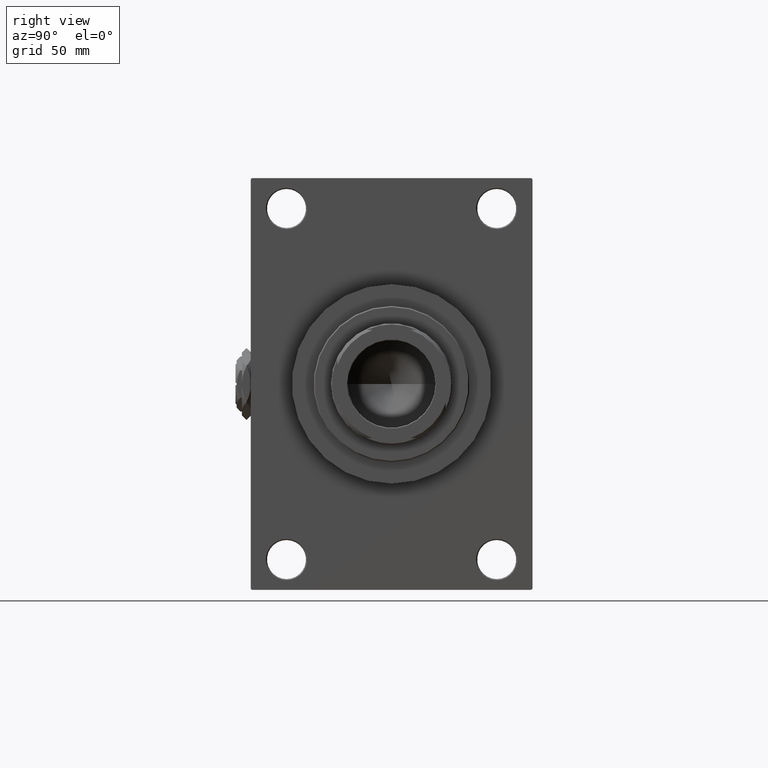
[diagram: clean part render]
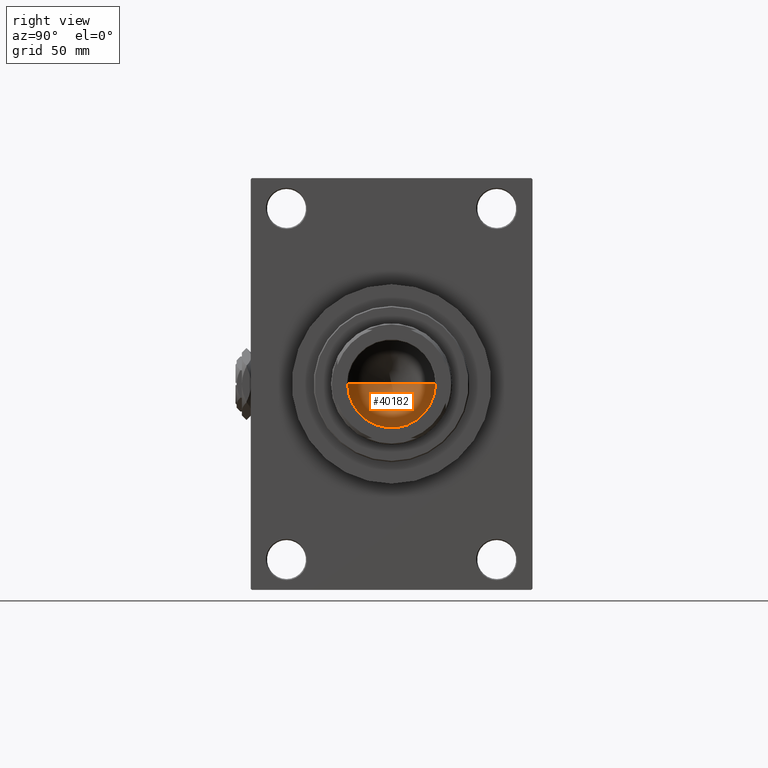
[diagram: same view with one face highlighted and labeled with its STEP entity id]
A machine part, right view. The second image highlights one B-rep face of the part: STEP entity #40182.
In plain terms, the highlighted conical surface has half-angle 59 deg.
Its self-contained STEP definition (entity closure, byte-faithful):
#2906 = ORIENTED_EDGE ( 'NONE', *, *, #26127, .T. ) ;
#3942 = EDGE_CURVE ( 'NONE', #7241, #31151, #32628, .T. ) ;
#4212 = VECTOR ( 'NONE', #6317, 1000.000000000000000 ) ;
#4752 = CARTESIAN_POINT ( 'NONE',  ( -1.584115414415908206E-14, 0.000000000000000000, 104.8325724646918928 ) ) ;
#4893 = FACE_OUTER_BOUND ( 'NONE', #18385, .T. ) ;
#5331 = ORIENTED_EDGE ( 'NONE', *, *, #20540, .T. ) ;
#6317 = DIRECTION ( 'NONE',  ( 0.8571673007021115565, 0.000000000000000000, 0.5150380749100554878 ) ) ;
#6808 = LINE ( 'NONE', #33017, #4212 ) ;
#7241 = VERTEX_POINT ( 'NONE', #4752 ) ;
#10641 = CARTESIAN_POINT ( 'NONE',  ( 0.000000000000000000, 0.000000000000000000, 117.0000000000000142 ) ) ;
#14236 = DIRECTION ( 'NONE',  ( -0.8571673007021115565, 1.049727191138617710E-16, 0.5150380749100554878 ) ) ;
#15788 = CIRCLE ( 'NONE', #35053, 20.24999999999998934 ) ;
#16742 = DIRECTION ( 'NONE',  ( -0.000000000000000000, -0.000000000000000000, 1.000000000000000000 ) ) ;
#17488 = AXIS2_PLACEMENT_3D ( 'NONE', #43710, #16742, #43955 ) ;
#18385 = EDGE_LOOP ( 'NONE', ( #41159, #2906, #5331 ) ) ;
#18686 = DIRECTION ( 'NONE',  ( 1.000000000000000000, 0.000000000000000000, 0.000000000000000000 ) ) ;
#20540 = EDGE_CURVE ( 'NONE', #39186, #31151, #15788, .T. ) ;
#20704 = CONICAL_SURFACE ( 'NONE', #17488, 20.24999999999998934, 1.029744258676652979 ) ;
#24720 = CARTESIAN_POINT ( 'NONE',  ( 20.24999999999998934, 0.000000000000000000, 117.0000000000000142 ) ) ;
#25726 = CARTESIAN_POINT ( 'NONE',  ( -20.24999999999998934, 2.479909768273389117E-15, 117.0000000000000142 ) ) ;
#26127 = EDGE_CURVE ( 'NONE', #7241, #39186, #6808, .T. ) ;
#26535 = VECTOR ( 'NONE', #14236, 1000.000000000000000 ) ;
#31151 = VERTEX_POINT ( 'NONE', #25726 ) ;
#32628 = LINE ( 'NONE', #41433, #26535 ) ;
#33017 = CARTESIAN_POINT ( 'NONE',  ( 20.24999999999998934, 0.000000000000000000, 117.0000000000000142 ) ) ;
#35053 = AXIS2_PLACEMENT_3D ( 'NONE', #10641, #41384, #18686 ) ;
#39186 = VERTEX_POINT ( 'NONE', #24720 ) ;
#40182 = ADVANCED_FACE ( 'NONE', ( #4893 ), #20704, .F. ) ;
#41159 = ORIENTED_EDGE ( 'NONE', *, *, #3942, .F. ) ;
#41384 = DIRECTION ( 'NONE',  ( -0.000000000000000000, -0.000000000000000000, 1.000000000000000000 ) ) ;
#41433 = CARTESIAN_POINT ( 'NONE',  ( -20.24999999999998934, 2.479909768273389117E-15, 117.0000000000000142 ) ) ;
#43710 = CARTESIAN_POINT ( 'NONE',  ( 0.000000000000000000, 0.000000000000000000, 117.0000000000000142 ) ) ;
#43955 = DIRECTION ( 'NONE',  ( 1.000000000000000000, 0.000000000000000000, 0.000000000000000000 ) ) ;